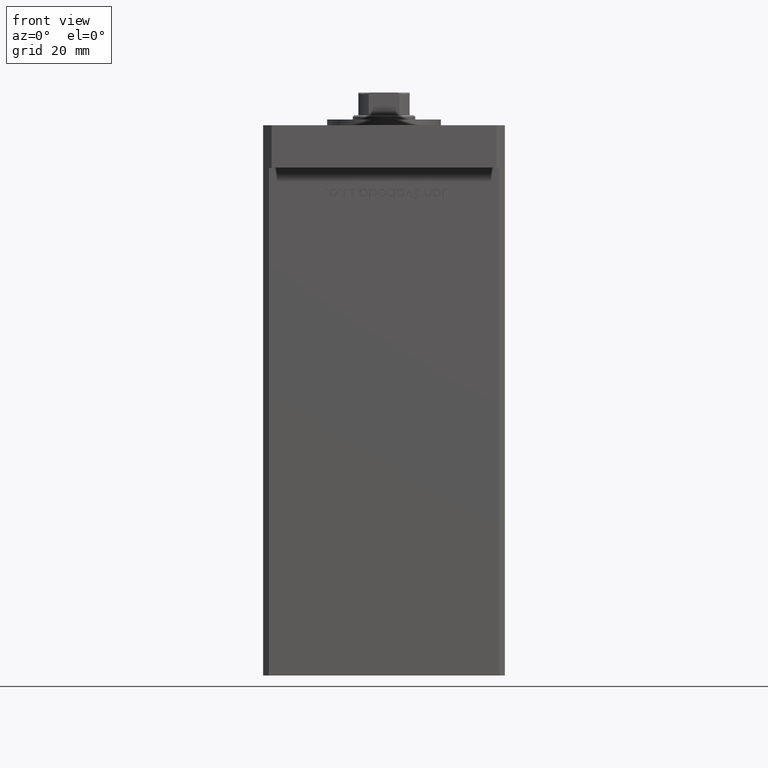
[diagram: clean part render]
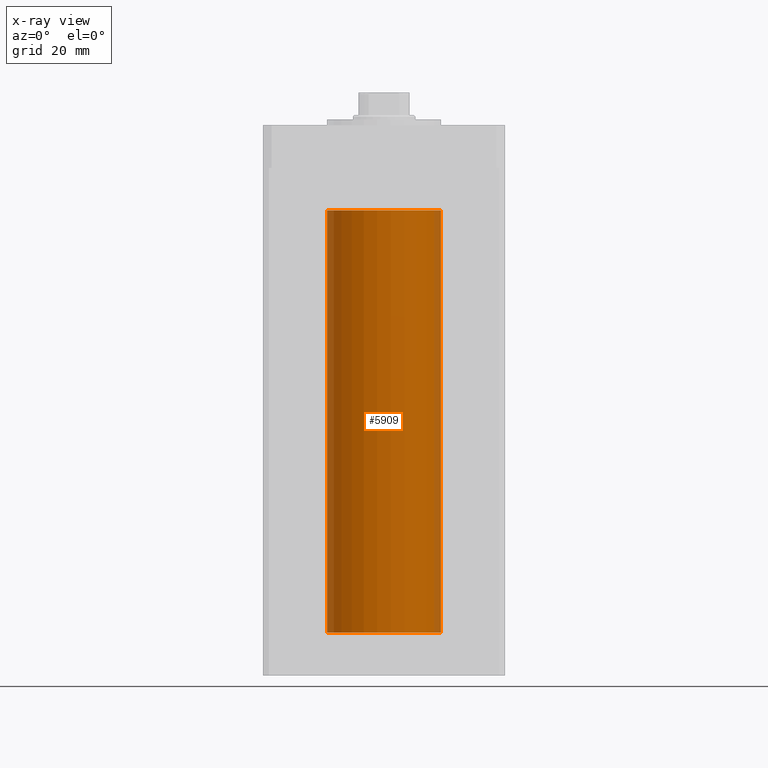
[diagram: x-ray — body ghosted, one internal face saturated and labeled with its STEP entity id]
A machine part, front view, then the same camera in x-ray: the body is ghosted and one INTERNAL B-rep face — a face not visible from any outside direction — is saturated and labeled: STEP entity #5909.
In plain terms, the highlighted cylindrical surface (partial cylindrical patch) has radius 20 mm, axis along (-0, -0, -1).
Its self-contained STEP definition (entity closure, byte-faithful):
#2036 = CYLINDRICAL_SURFACE ( 'NONE', #34158, 20.00000000000000000 ) ;
#2342 = DIRECTION ( 'NONE',  ( 1.000000000000000000, 0.000000000000000000, 0.000000000000000000 ) ) ;
#2947 = ORIENTED_EDGE ( 'NONE', *, *, #50461, .F. ) ;
#3789 = ORIENTED_EDGE ( 'NONE', *, *, #52886, .F. ) ;
#4552 = CARTESIAN_POINT ( 'NONE',  ( -20.00000000000000000, 0.000000000000000000, 148.5000000000000000 ) ) ;
#5909 = ADVANCED_FACE ( 'NONE', ( #34815 ), #2036, .F. ) ;
#6520 = CARTESIAN_POINT ( 'NONE',  ( 0.000000000000000000, 0.000000000000000000, 0.000000000000000000 ) ) ;
#6811 = CARTESIAN_POINT ( 'NONE',  ( -20.00000000000000000, 0.000000000000000000, 0.000000000000000000 ) ) ;
#13538 = VERTEX_POINT ( 'NONE', #6811 ) ;
#13687 = EDGE_LOOP ( 'NONE', ( #36215, #14223, #3789, #2947 ) ) ;
#14223 = ORIENTED_EDGE ( 'NONE', *, *, #39297, .T. ) ;
#14773 = CARTESIAN_POINT ( 'NONE',  ( 0.000000000000000000, 0.000000000000000000, 148.5000000000000000 ) ) ;
#14909 = DIRECTION ( 'NONE',  ( -0.000000000000000000, 0.000000000000000000, 1.000000000000000000 ) ) ;
#15247 = VECTOR ( 'NONE', #51879, 1000.000000000000000 ) ;
#15789 = LINE ( 'NONE', #19618, #15247 ) ;
#16037 = CIRCLE ( 'NONE', #40278, 20.00000000000000000 ) ;
#17551 = VERTEX_POINT ( 'NONE', #4552 ) ;
#19618 = CARTESIAN_POINT ( 'NONE',  ( 20.00000000000000000, 2.449293598294706513E-15, 148.5000000000000000 ) ) ;
#20083 = AXIS2_PLACEMENT_3D ( 'NONE', #6520, #14909, #27128 ) ;
#22643 = DIRECTION ( 'NONE',  ( -0.000000000000000000, -0.000000000000000000, -1.000000000000000000 ) ) ;
#26165 = CARTESIAN_POINT ( 'NONE',  ( 0.000000000000000000, 0.000000000000000000, 148.5000000000000000 ) ) ;
#27128 = DIRECTION ( 'NONE',  ( 1.000000000000000000, 0.000000000000000000, 0.000000000000000000 ) ) ;
#34158 = AXIS2_PLACEMENT_3D ( 'NONE', #26165, #42676, #51363 ) ;
#34815 = FACE_OUTER_BOUND ( 'NONE', #13687, .T. ) ;
#35194 = VERTEX_POINT ( 'NONE', #42091 ) ;
#35624 = LINE ( 'NONE', #39692, #36440 ) ;
#36215 = ORIENTED_EDGE ( 'NONE', *, *, #38269, .T. ) ;
#36440 = VECTOR ( 'NONE', #22643, 1000.000000000000000 ) ;
#38269 = EDGE_CURVE ( 'NONE', #17551, #53019, #16037, .T. ) ;
#39297 = EDGE_CURVE ( 'NONE', #53019, #35194, #15789, .T. ) ;
#39692 = CARTESIAN_POINT ( 'NONE',  ( -20.00000000000000000, 0.000000000000000000, 148.5000000000000000 ) ) ;
#40278 = AXIS2_PLACEMENT_3D ( 'NONE', #14773, #41251, #2342 ) ;
#41251 = DIRECTION ( 'NONE',  ( -0.000000000000000000, 0.000000000000000000, 1.000000000000000000 ) ) ;
#41704 = CARTESIAN_POINT ( 'NONE',  ( 20.00000000000000000, 2.449293598294706513E-15, 148.5000000000000000 ) ) ;
#42091 = CARTESIAN_POINT ( 'NONE',  ( 20.00000000000000000, 2.449293598294706513E-15, 0.000000000000000000 ) ) ;
#42676 = DIRECTION ( 'NONE',  ( -0.000000000000000000, -0.000000000000000000, -1.000000000000000000 ) ) ;
#43446 = CIRCLE ( 'NONE', #20083, 20.00000000000000000 ) ;
#50461 = EDGE_CURVE ( 'NONE', #17551, #13538, #35624, .T. ) ;
#51363 = DIRECTION ( 'NONE',  ( -1.000000000000000000, 0.000000000000000000, 0.000000000000000000 ) ) ;
#51879 = DIRECTION ( 'NONE',  ( -0.000000000000000000, -0.000000000000000000, -1.000000000000000000 ) ) ;
#52886 = EDGE_CURVE ( 'NONE', #13538, #35194, #43446, .T. ) ;
#53019 = VERTEX_POINT ( 'NONE', #41704 ) ;